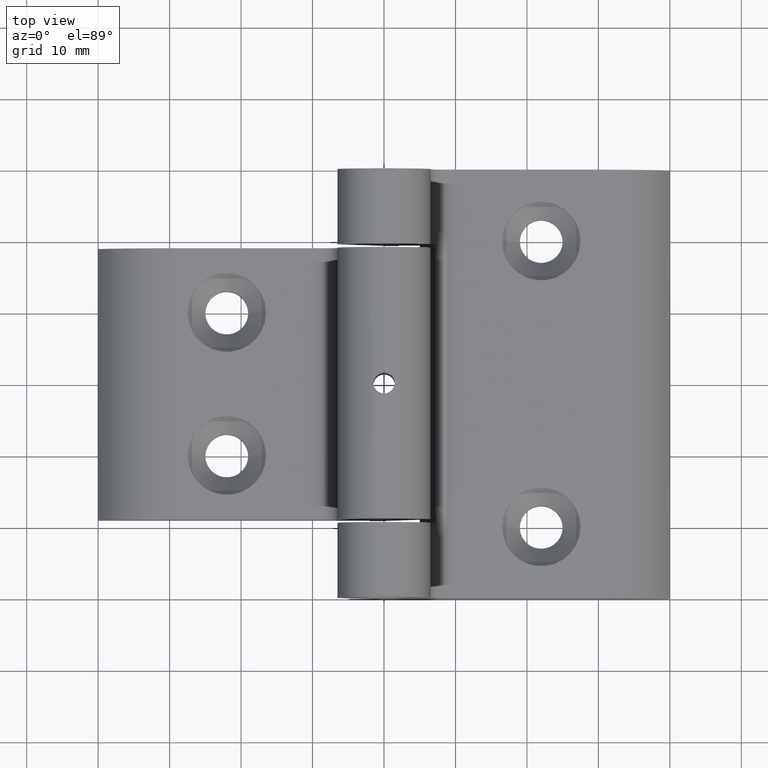
[diagram: clean part render]
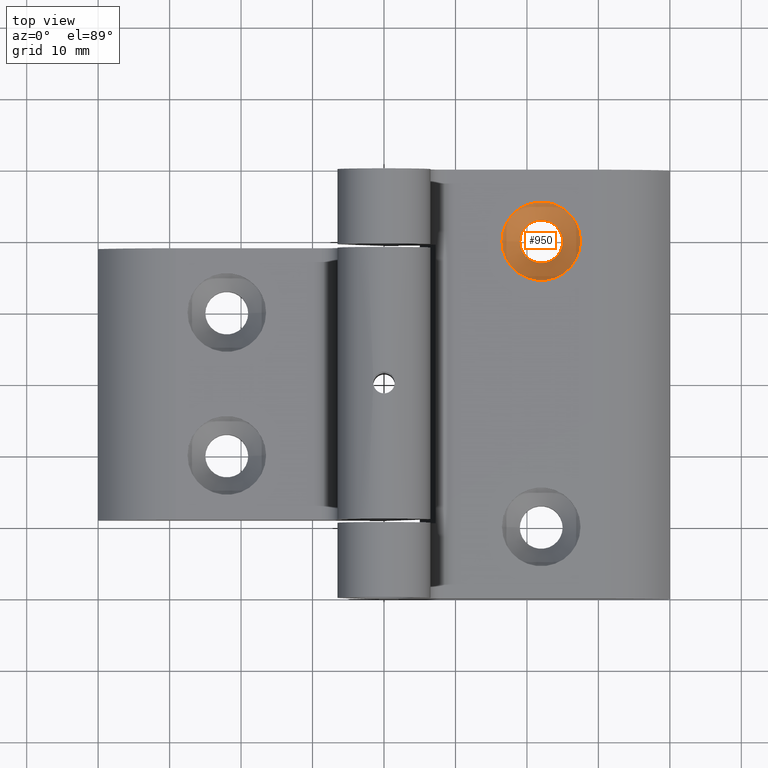
[diagram: same view with one face highlighted and labeled with its STEP entity id]
A machine part, top view. The second image highlights one B-rep face of the part: STEP entity #950.
In plain terms, the highlighted conical surface has half-angle 45 deg.
Its self-contained STEP definition (entity closure, byte-faithful):
#107=FACE_OUTER_BOUND('',#153,.T.);
#153=EDGE_LOOP('',(#656,#657,#658,#659,#660,#661));
#216=LINE('',#1451,#285);
#285=VECTOR('',#1171,4.25);
#354=CIRCLE('',#1060,5.5);
#355=CIRCLE('',#1061,3.);
#356=CIRCLE('',#1062,3.);
#357=CIRCLE('',#1063,5.5);
#409=VERTEX_POINT('',#1447);
#410=VERTEX_POINT('',#1448);
#411=VERTEX_POINT('',#1450);
#412=VERTEX_POINT('',#1452);
#511=EDGE_CURVE('',#409,#410,#354,.T.);
#512=EDGE_CURVE('',#410,#411,#216,.T.);
#513=EDGE_CURVE('',#412,#411,#355,.T.);
#514=EDGE_CURVE('',#411,#412,#356,.T.);
#515=EDGE_CURVE('',#410,#409,#357,.T.);
#656=ORIENTED_EDGE('',*,*,#511,.T.);
#657=ORIENTED_EDGE('',*,*,#512,.T.);
#658=ORIENTED_EDGE('',*,*,#513,.F.);
#659=ORIENTED_EDGE('',*,*,#514,.F.);
#660=ORIENTED_EDGE('',*,*,#512,.F.);
#661=ORIENTED_EDGE('',*,*,#515,.T.);
#946=CONICAL_SURFACE('',#1059,4.25,0.785398163397448);
#950=ADVANCED_FACE('',(#107),#946,.F.);
#1059=AXIS2_PLACEMENT_3D('',#1446,#1167,#1168);
#1060=AXIS2_PLACEMENT_3D('',#1449,#1169,#1170);
#1061=AXIS2_PLACEMENT_3D('',#1453,#1172,#1173);
#1062=AXIS2_PLACEMENT_3D('',#1454,#1174,#1175);
#1063=AXIS2_PLACEMENT_3D('',#1455,#1176,#1177);
#1167=DIRECTION('center_axis',(1.087908341283E-16,0.,1.));
#1168=DIRECTION('ref_axis',(1.,0.,-1.087908341283E-16));
#1169=DIRECTION('center_axis',(1.087908341283E-16,0.,1.));
#1170=DIRECTION('ref_axis',(1.,0.,-1.087908341283E-16));
#1171=DIRECTION('',(0.707106781186547,8.65956056235493E-17,-0.707106781186548));
#1172=DIRECTION('center_axis',(1.087908341283E-16,0.,1.));
#1173=DIRECTION('ref_axis',(1.,0.,-1.087908341283E-16));
#1174=DIRECTION('center_axis',(1.087908341283E-16,0.,1.));
#1175=DIRECTION('ref_axis',(1.,0.,-1.087908341283E-16));
#1176=DIRECTION('center_axis',(1.087908341283E-16,0.,1.));
#1177=DIRECTION('ref_axis',(1.,0.,-1.087908341283E-16));
#1446=CARTESIAN_POINT('Origin',(22.,20.,-6.75));
#1447=CARTESIAN_POINT('',(27.5,20.,-5.5));
#1448=CARTESIAN_POINT('',(16.5,20.,-5.5));
#1449=CARTESIAN_POINT('Origin',(22.,20.,-5.5));
#1450=CARTESIAN_POINT('',(19.,20.,-8.00000000000001));
#1451=CARTESIAN_POINT('',(17.75,20.,-6.75));
#1452=CARTESIAN_POINT('',(25.,20.,-8.00000000000001));
#1453=CARTESIAN_POINT('Origin',(22.,20.,-8.));
#1454=CARTESIAN_POINT('Origin',(22.,20.,-8.));
#1455=CARTESIAN_POINT('Origin',(22.,20.,-5.5));